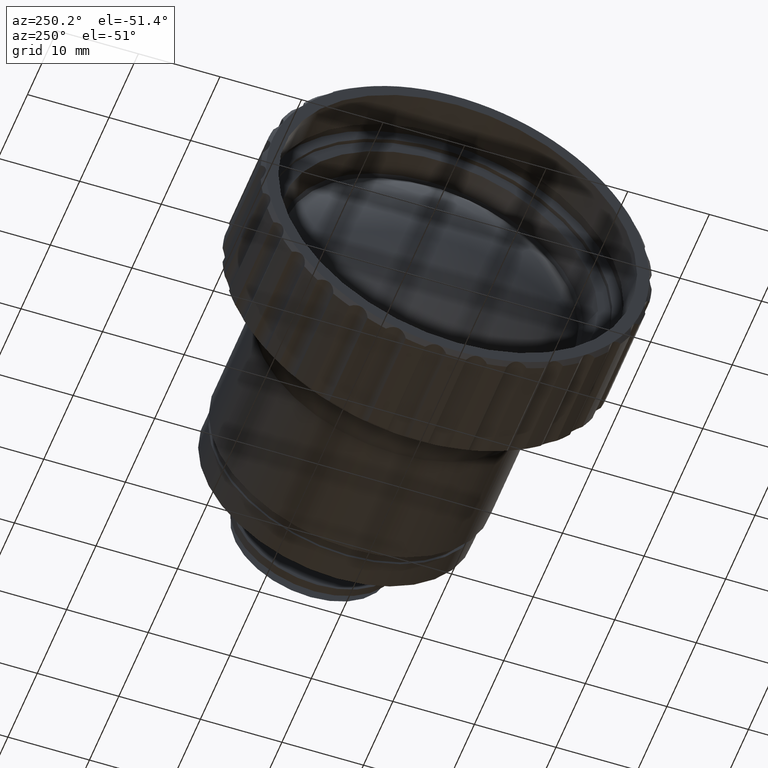
[diagram: clean part render]
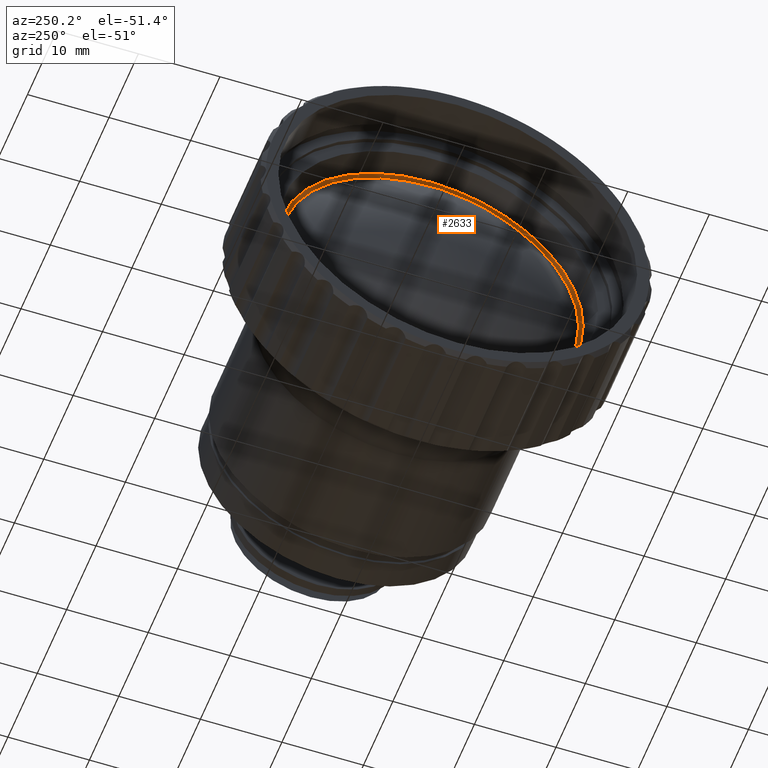
[diagram: same view with one face highlighted and labeled with its STEP entity id]
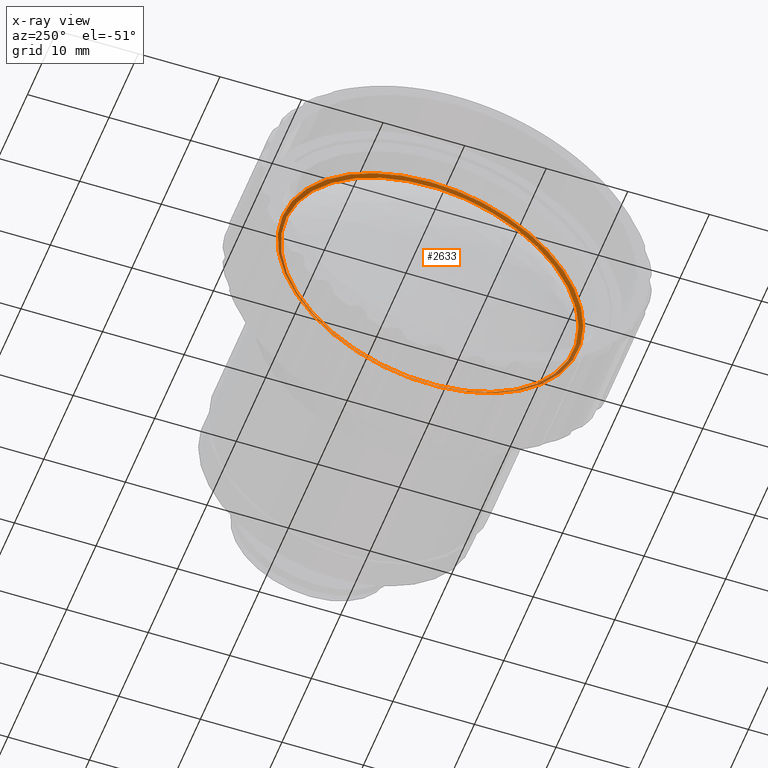
[diagram: x-ray of the same camera — body ghosted, the highlighted face saturated]
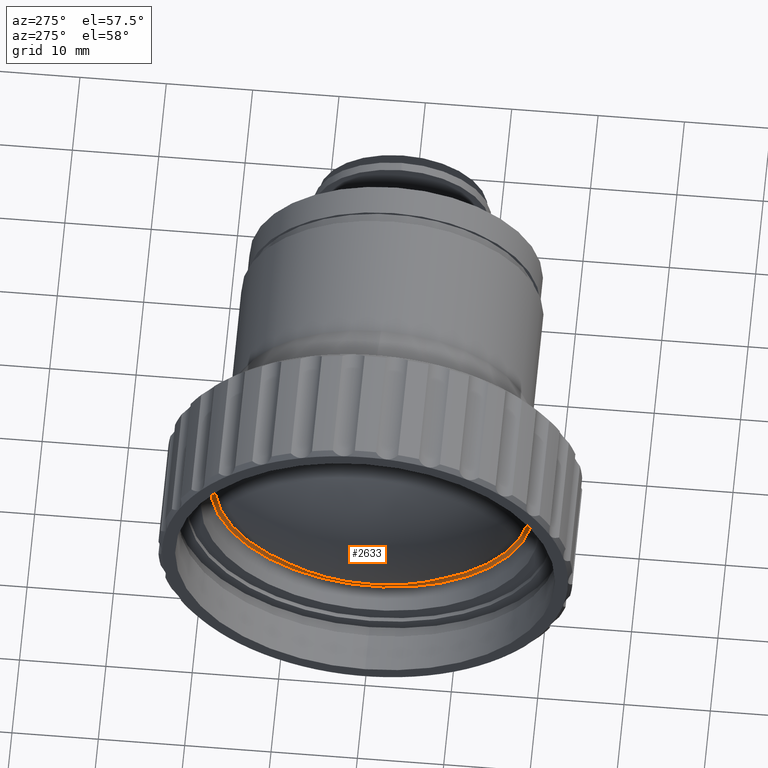
[diagram: same view with one face highlighted and labeled with its STEP entity id]
A machine part, auxiliary view. The second image highlights one B-rep face of the part: STEP entity #2633.
The next image is the same camera in x-ray: the body ghosted, the highlighted face saturated — about 17% of this face is hidden behind the body in this view.
A second angle (auxiliary view) of the same face is appended — the face is thin or edge-on in the first view.
In plain terms, the highlighted conical surface has half-angle 61.67 deg.
Its self-contained STEP definition (entity closure, byte-faithful):
#66 = CARTESIAN_POINT ( 'NONE',  ( 9.438564431576484282, 0.000000000000000000, 0.000000000000000000 ) ) ;
#91 = AXIS2_PLACEMENT_3D ( 'NONE', #4602, #478, #4142 ) ;
#144 = ORIENTED_EDGE ( 'NONE', *, *, #3711, .T. ) ;
#239 = EDGE_LOOP ( 'NONE', ( #387 ) ) ;
#387 = ORIENTED_EDGE ( 'NONE', *, *, #3500, .F. ) ;
#478 = DIRECTION ( 'NONE',  ( -1.000000000000000000, 0.000000000000000000, 0.000000000000000000 ) ) ;
#569 = CARTESIAN_POINT ( 'NONE',  ( 9.692128504263850530, -18.26806514887612920, 0.000000000000000000 ) ) ;
#598 = CARTESIAN_POINT ( 'NONE',  ( 9.692128504263850530, 1.173696493383198370E-17, 0.000000000000000000 ) ) ;
#739 = CONICAL_SURFACE ( 'NONE', #3459, 18.73838560628011507, 1.076336554603973594 ) ;
#943 = DIRECTION ( 'NONE',  ( -1.000000000000000000, -4.628796504741101408E-17, -0.000000000000000000 ) ) ;
#1150 = DIRECTION ( 'NONE',  ( -1.000000000000000000, -4.628796504741101408E-17, -0.000000000000000000 ) ) ;
#1922 = FACE_OUTER_BOUND ( 'NONE', #2632, .T. ) ;
#2632 = EDGE_LOOP ( 'NONE', ( #144 ) ) ;
#2633 = ADVANCED_FACE ( 'NONE', ( #4178, #1922 ), #739, .F. ) ;
#3433 = AXIS2_PLACEMENT_3D ( 'NONE', #598, #943, #3949 ) ;
#3459 = AXIS2_PLACEMENT_3D ( 'NONE', #66, #1150, #4198 ) ;
#3500 = EDGE_CURVE ( 'NONE', #4574, #4574, #4524, .T. ) ;
#3523 = CARTESIAN_POINT ( 'NONE',  ( 9.438564431576486058, 0.000000000000000000, 18.73838560628011507 ) ) ;
#3711 = EDGE_CURVE ( 'NONE', #4205, #4205, #3821, .T. ) ;
#3821 = CIRCLE ( 'NONE', #91, 18.73838560628011507 ) ;
#3949 = DIRECTION ( 'NONE',  ( 0.000000000000000000, -1.000000000000000000, 0.000000000000000000 ) ) ;
#4142 = DIRECTION ( 'NONE',  ( 0.000000000000000000, 0.000000000000000000, 1.000000000000000000 ) ) ;
#4178 = FACE_BOUND ( 'NONE', #239, .T. ) ;
#4198 = DIRECTION ( 'NONE',  ( 9.257593009482201583E-17, -1.000000000000000000, 0.000000000000000000 ) ) ;
#4205 = VERTEX_POINT ( 'NONE', #3523 ) ;
#4524 = CIRCLE ( 'NONE', #3433, 18.26806514887612920 ) ;
#4574 = VERTEX_POINT ( 'NONE', #569 ) ;
#4602 = CARTESIAN_POINT ( 'NONE',  ( 9.438564431576486058, 0.000000000000000000, 0.000000000000000000 ) ) ;